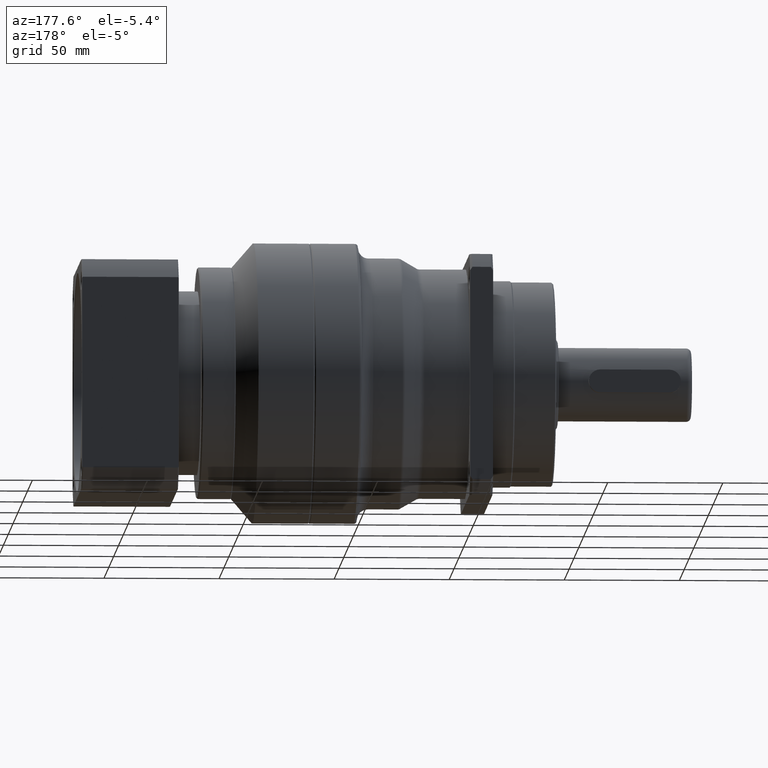
[diagram: clean part render]
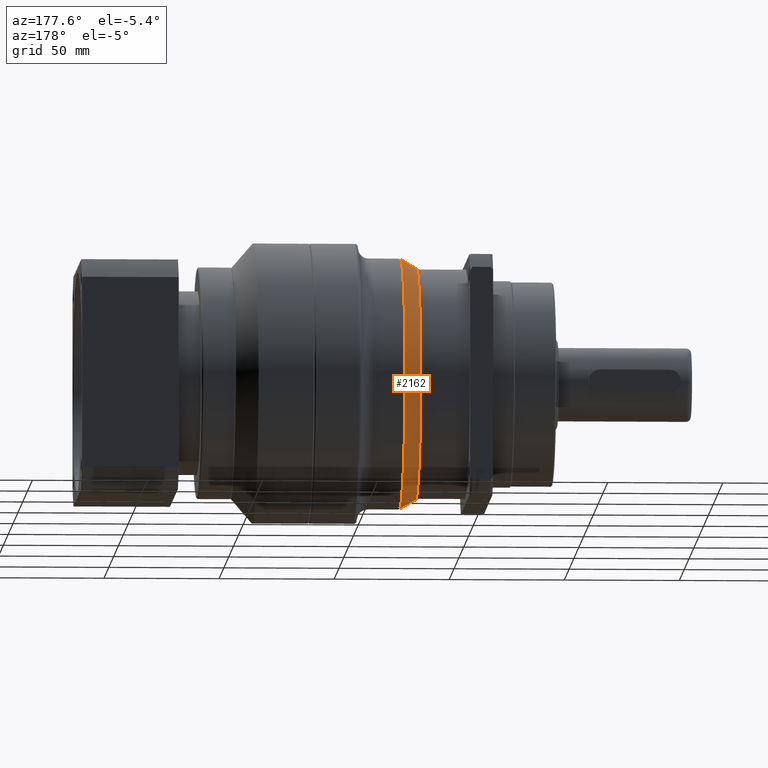
[diagram: same view with one face highlighted and labeled with its STEP entity id]
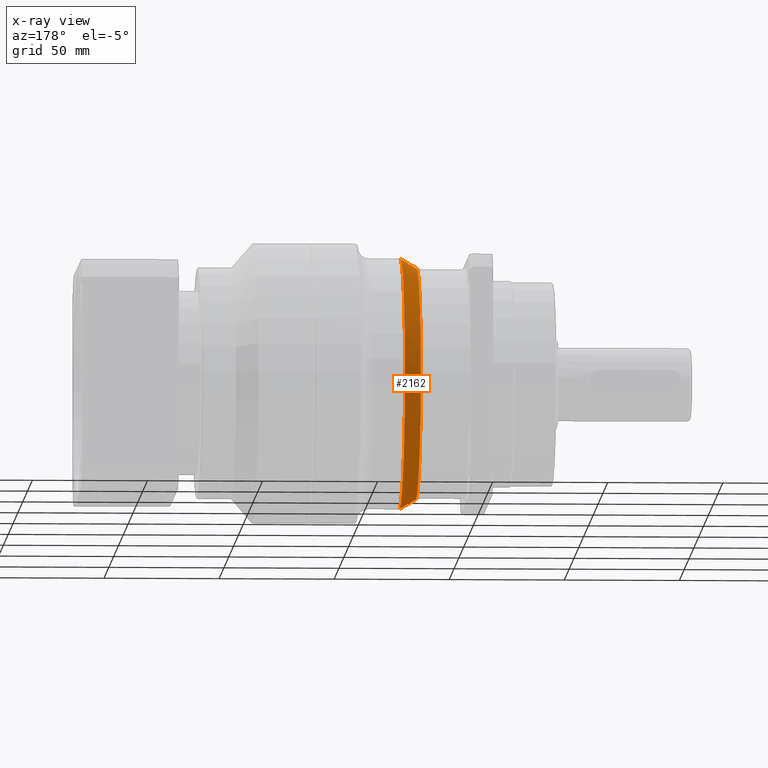
[diagram: x-ray of the same camera — body ghosted, the highlighted face saturated]
A machine part, auxiliary view. The second image highlights one B-rep face of the part: STEP entity #2162.
The next image is the same camera in x-ray: the body ghosted, the highlighted face saturated — about 0% of this face is hidden behind the body in this view.
In plain terms, the highlighted conical surface has half-angle 29.887 deg.
Its self-contained STEP definition (entity closure, byte-faithful):
#75 = AXIS2_PLACEMENT_3D ( 'NONE', #2595, #3012, #626 ) ;
#280 = ORIENTED_EDGE ( 'NONE', *, *, #3430, .T. ) ;
#428 = CARTESIAN_POINT ( 'NONE',  ( 123.0166941661194100, 4.633161260266400700, 50.39897353877379500 ) ) ;
#626 = DIRECTION ( 'NONE',  ( 0.0000000000000000000, 0.0000000000000000000, 1.000000000000000000 ) ) ;
#897 = ORIENTED_EDGE ( 'NONE', *, *, #4957, .T. ) ;
#917 = VERTEX_POINT ( 'NONE', #1650 ) ;
#922 = DIRECTION ( 'NONE',  ( 0.0000000000000000000, 0.0000000000000000000, -1.000000000000000000 ) ) ;
#1117 = DIRECTION ( 'NONE',  ( -1.000000000000000000, -0.0000000000000000000, -0.0000000000000000000 ) ) ;
#1124 = EDGE_LOOP ( 'NONE', ( #2831, #897, #280, #1965 ) ) ;
#1129 = CARTESIAN_POINT ( 'NONE',  ( 123.0166941661194100, 4.633161260266394500, 0.0000000000000000000 ) ) ;
#1170 = LINE ( 'NONE', #4490, #5188 ) ;
#1304 = EDGE_CURVE ( 'NONE', #3164, #917, #4963, .T. ) ;
#1520 = CARTESIAN_POINT ( 'NONE',  ( 130.0375038045096100, 4.633161260266394500, 54.43401764087197100 ) ) ;
#1554 = CARTESIAN_POINT ( 'NONE',  ( 130.0375038045096100, 4.633161260266402500, -54.43401764087197100 ) ) ;
#1614 = CONICAL_SURFACE ( 'NONE', #1718, 54.43401764087197100, 0.5216285793350492500 ) ;
#1644 = EDGE_CURVE ( 'NONE', #917, #4063, #1170, .T. ) ;
#1650 = CARTESIAN_POINT ( 'NONE',  ( 123.0166941661194100, 4.633161260266394500, -50.39897353877379500 ) ) ;
#1712 = DIRECTION ( 'NONE',  ( 0.8670088204654521300, 0.0000000000000000000, -0.4982927906714138000 ) ) ;
#1718 = AXIS2_PLACEMENT_3D ( 'NONE', #2038, #2533, #922 ) ;
#1965 = ORIENTED_EDGE ( 'NONE', *, *, #1644, .F. ) ;
#2011 = AXIS2_PLACEMENT_3D ( 'NONE', #1129, #1117, #3955 ) ;
#2038 = CARTESIAN_POINT ( 'NONE',  ( 130.0375038045096100, 4.633161260266394500, 0.0000000000000000000 ) ) ;
#2162 = ADVANCED_FACE ( 'NONE', ( #2859 ), #1614, .T. ) ;
#2305 = VECTOR ( 'NONE', #4295, 1000.000000000000000 ) ;
#2533 = DIRECTION ( 'NONE',  ( 1.000000000000000000, 0.0000000000000000000, 0.0000000000000000000 ) ) ;
#2595 = CARTESIAN_POINT ( 'NONE',  ( 130.0375038045096100, 4.633161260266394500, 0.0000000000000000000 ) ) ;
#2831 = ORIENTED_EDGE ( 'NONE', *, *, #1304, .F. ) ;
#2859 = FACE_OUTER_BOUND ( 'NONE', #1124, .T. ) ;
#3012 = DIRECTION ( 'NONE',  ( -1.000000000000000000, -0.0000000000000000000, -0.0000000000000000000 ) ) ;
#3164 = VERTEX_POINT ( 'NONE', #428 ) ;
#3366 = CIRCLE ( 'NONE', #75, 54.43401764087197100 ) ;
#3430 = EDGE_CURVE ( 'NONE', #5047, #4063, #3366, .T. ) ;
#3955 = DIRECTION ( 'NONE',  ( 0.0000000000000000000, 0.0000000000000000000, 1.000000000000000000 ) ) ;
#4063 = VERTEX_POINT ( 'NONE', #1554 ) ;
#4295 = DIRECTION ( 'NONE',  ( 0.8670088204654521300, 6.102326711339490700E-017, 0.4982927906714138000 ) ) ;
#4490 = CARTESIAN_POINT ( 'NONE',  ( 130.0375038045096100, 4.633161260266394500, -54.43401764087197100 ) ) ;
#4676 = CARTESIAN_POINT ( 'NONE',  ( 130.0375038045096100, 4.633161260266401600, 54.43401764087197100 ) ) ;
#4782 = LINE ( 'NONE', #4676, #2305 ) ;
#4957 = EDGE_CURVE ( 'NONE', #3164, #5047, #4782, .T. ) ;
#4963 = CIRCLE ( 'NONE', #2011, 50.39897353877379500 ) ;
#5047 = VERTEX_POINT ( 'NONE', #1520 ) ;
#5188 = VECTOR ( 'NONE', #1712, 1000.000000000000000 ) ;